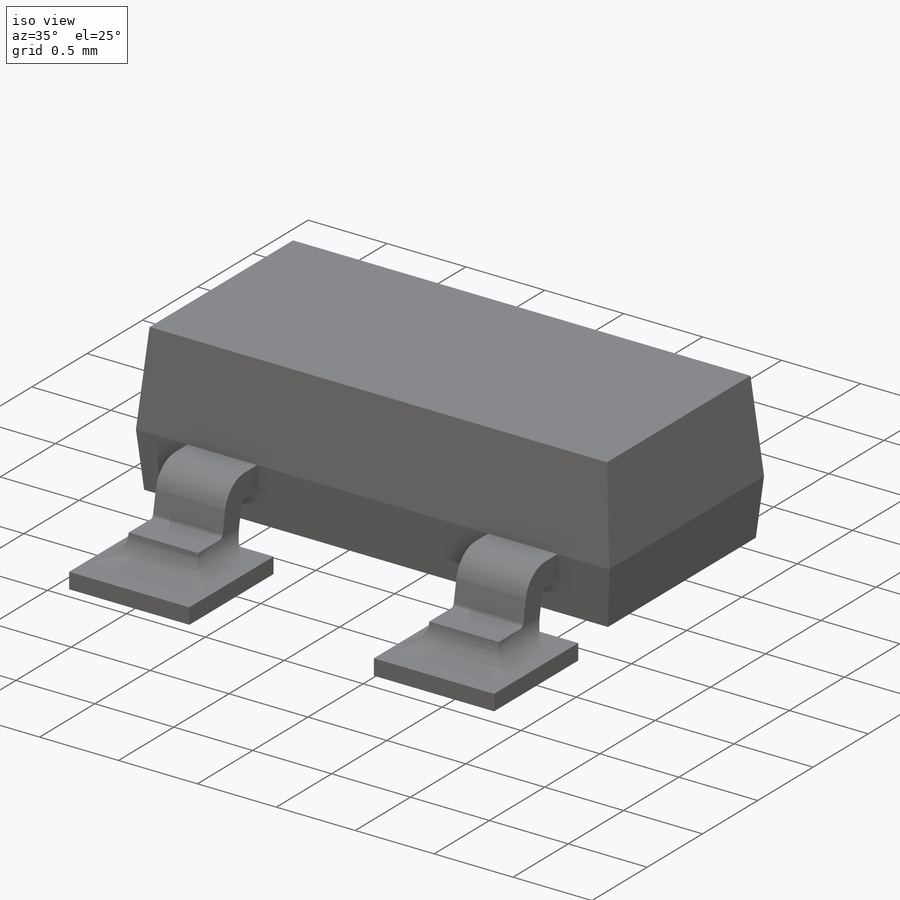
[diagram: iso view]
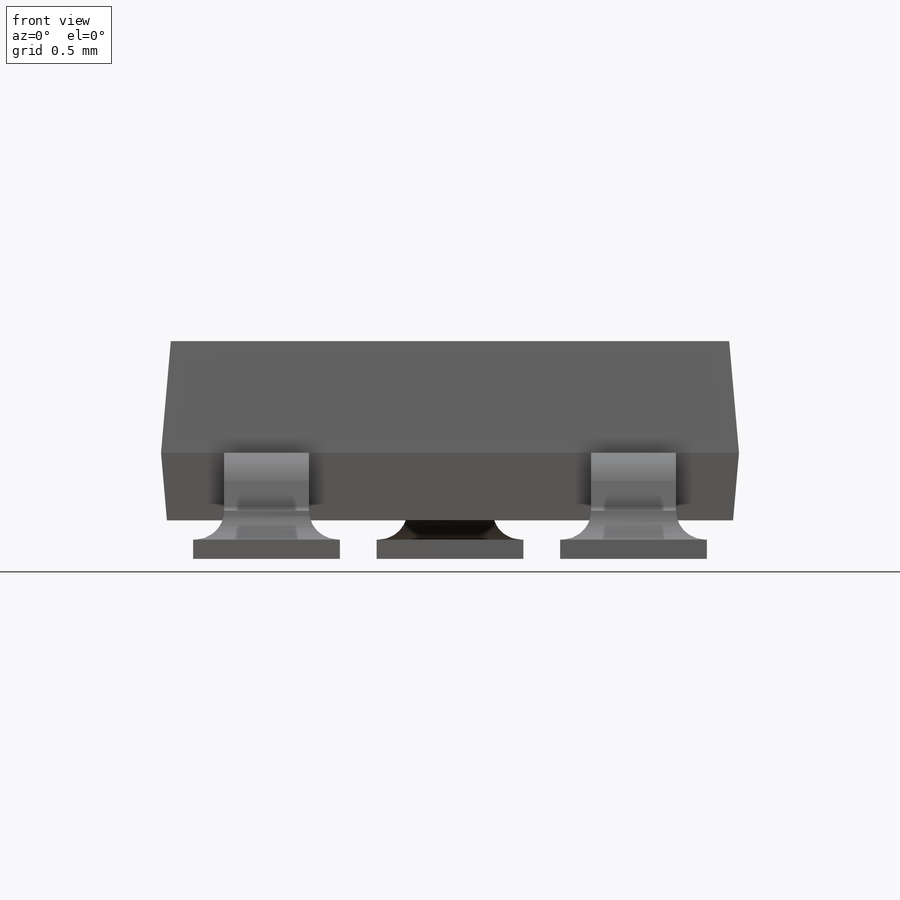
[diagram: front view]
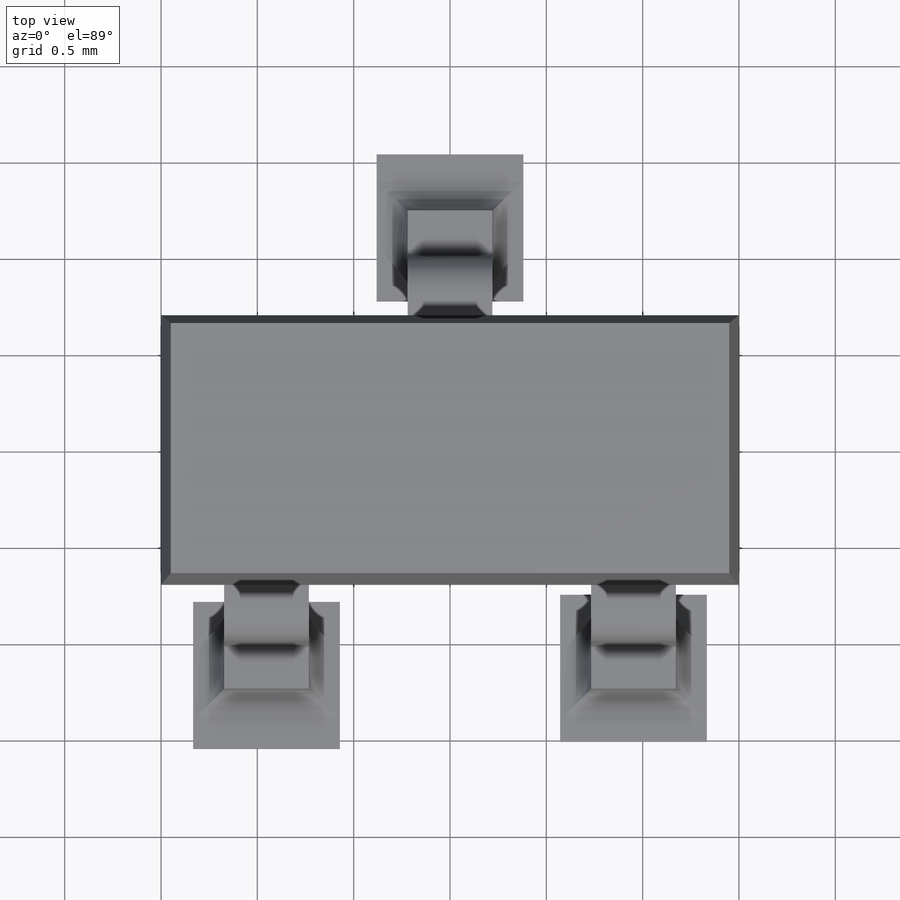
[diagram: top view]
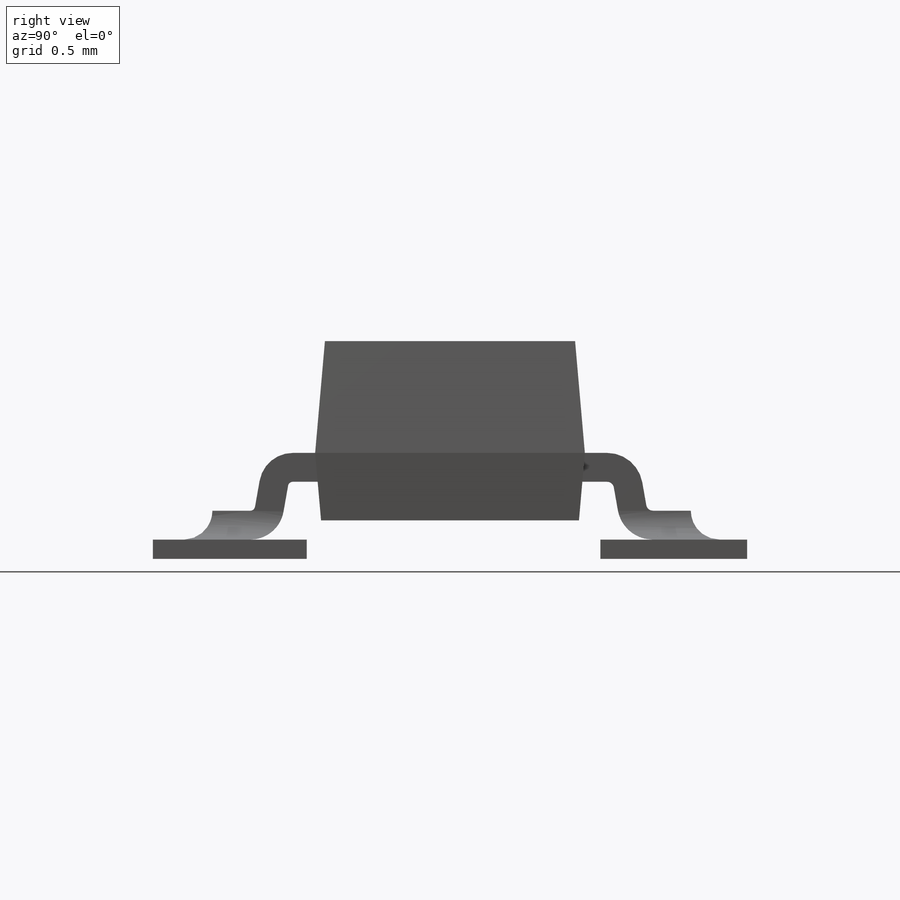
[diagram: right view]
SOLIDWORKS PART (.sldprt)
format: sldprt  version: not decoded by parser v0  size: 355,328 bytes
history: native  units: mm
features: sketch x5, extrude x3, material x1, cut_extrude x1, plane x1, pattern_linear x1, fillet x1 (+13 scaffold rows collapsed)
feature tree (26):
  scaffold x13  (default folders/planes/origin — collapsed)
  material  "Alumina"
  sketch  "Sketch1"  dims[c1.D1=0.35mm c1.D2=0.93mm c1.D3=1.4mm c1.D4=0.7mm c1.D5=~0.603257mm c2.D5=5.0deg c2.D6=0.35mm c3.D6=5.0deg c3.D7=0.2mm]
  extrude  "Boss-Extrude1"  Depth=3mm
  sketch  "Sketch2"  dims[c1.D1=0.58mm c2.D1=5.0deg c2.D2=0.45mm c3.D2=5.0deg c3.D3=2.0mm c3.D4=2.0mm]
  cut_extrude  "Cut-Extrude1"  [1 undecoded]
  plane  "Plane1"  Offset=0.9525mm
  sketch  "Sketch3"  dims[c1.D7=0.11mm c1.D1=1.25mm c1.D2=0.175mm c1.D3=0.475mm c1.D4=0.075mm c1.D5=0.5mm c1.D6=0.3mm c2.D6=10.0deg c2.D8=0.305mm c2.D1=0.44mm c2.D5=0.15mm c3.D6=1.0mm c3.D7=5.0mm]
  sketch  "Sketch4"  dims[c1.D3=0.1mm c1.D1=~0.16804mm c2.D1=10.0deg c2.D2=0.5mm]
  extrude  "Extrude-Thin2"  Depth=0.44mm
  pattern_linear  "LPattern1"  Count1=2 Count2=1 Spacing1=1.905mm Spacing2=10mm
  sketch  "Sketch5"  dims[D1=0.762mm D2=1.3335mm D3=1.3335mm D4=2.286mm D5=0.381mm D6=~0.780508mm D7=~0.780508mm]
  extrude  "Boss-Extrude2"  Depth=0.1mm
  fillet  "Fillet1"  Radius=0.15mm
decode coverage: 10 of 11 modeling features carry decoded parameters
note: ~ marks probable driven/reference dimensions
note: 1 parameter value undecoded
note: suppression state not decoded; provenance and decode notes live in map.json
